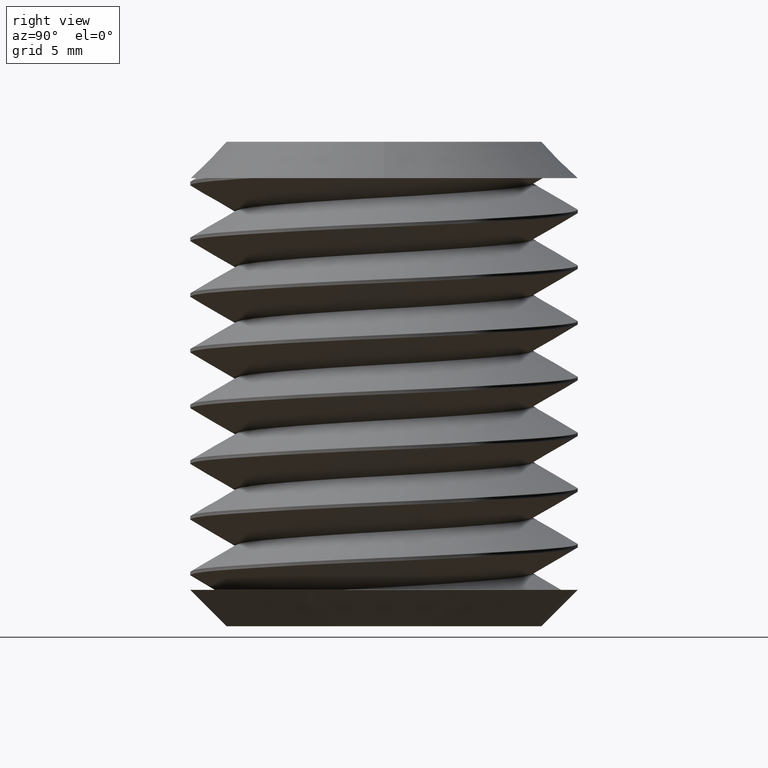
[diagram: clean part render]
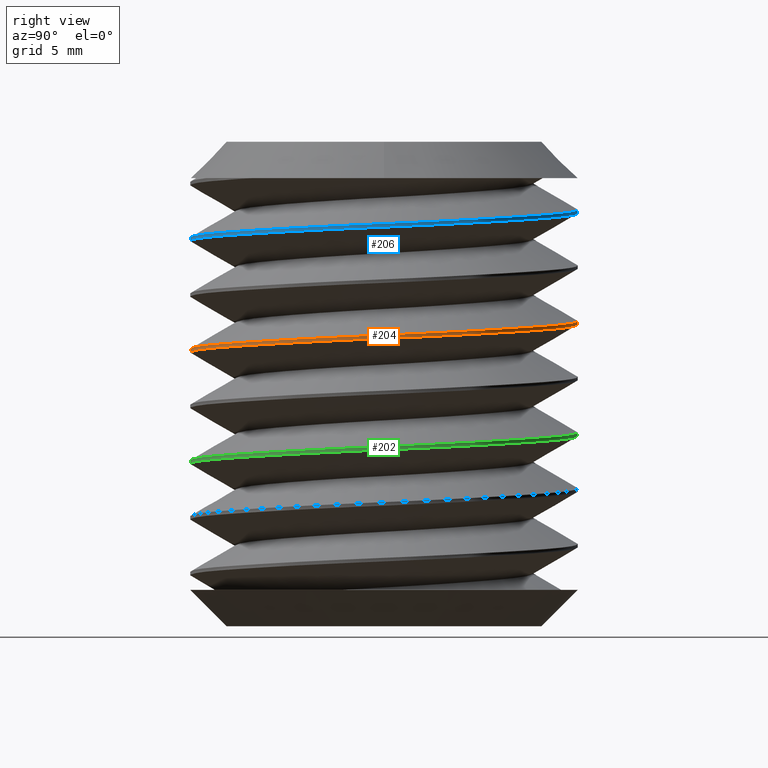
[diagram: same view with three faces highlighted in distinct colors, each labeled with its STEP entity id]
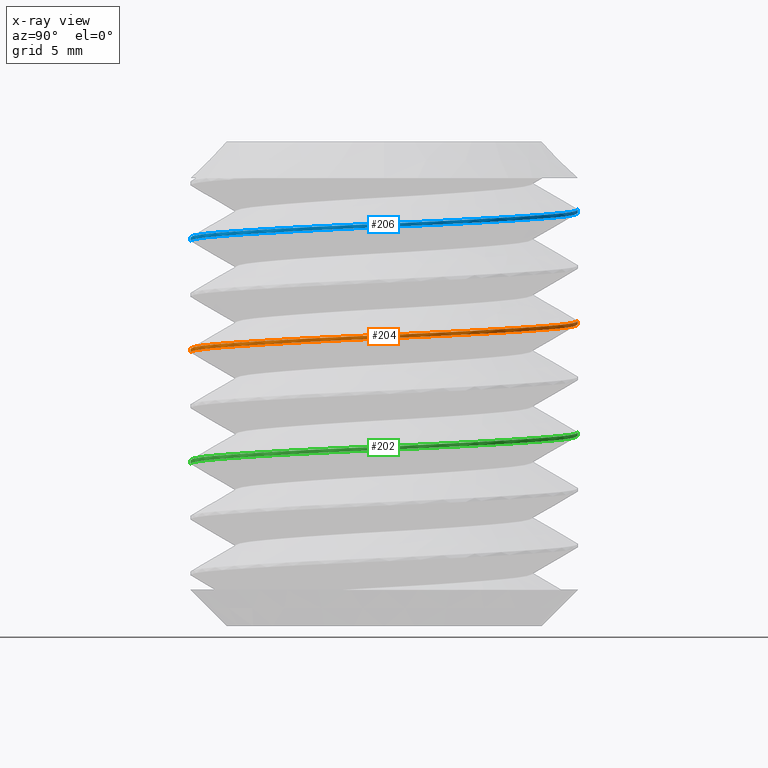
[diagram: x-ray of the same camera — body ghosted, the three highlighted faces saturated]
A machine part, right view with three faces highlighted in distinct colors.
The next image is the same camera in x-ray (body ghosted, the three faces saturated) — at least one of them is partly hidden behind the body in this view.
Their STEP definitions:

[orange] entity #204 — the highlighted cylindrical surface (partial cylindrical patch) has radius 8 mm, axis along (0, -0, 1).
#204 = ADVANCED_FACE ( 'NONE', ( #1640 ), #1641, .T. ) ;
#573 = CARTESIAN_POINT ( 'NONE',  ( 4.741141095785972700E-014, 7.999999999999998200, -7.402720502362306800 ) ) ;
#582 = CARTESIAN_POINT ( 'NONE',  ( 1.557139477537179200E-014, -8.000000000000001800, -8.697279497637692800 ) ) ;
#608 = CARTESIAN_POINT ( 'NONE',  ( 1.661816435848325300E-011, 7.999999999999998200, -7.547279497638494500 ) ) ;
#612 = CARTESIAN_POINT ( 'NONE',  ( -3.160760730523304000E-014, -8.000000000000001800, -8.552720502362307200 ) ) ;
#1529 = VECTOR ( 'NONE', #1969, 1000.000000000000000 ) ;
#1530 = VECTOR ( 'NONE', #1875, 1000.000000000000000 ) ;
#1609 = EDGE_LOOP ( 'NONE', ( #1620, #1632, #1621, #1631 ) ) ;
#1620 = ORIENTED_EDGE ( 'NONE', *, *, #2745, .F. ) ;
#1621 = ORIENTED_EDGE ( 'NONE', *, *, #2737, .F. ) ;
#1631 = ORIENTED_EDGE ( 'NONE', *, *, #2738, .F. ) ;
#1632 = ORIENTED_EDGE ( 'NONE', *, *, #2741, .T. ) ;
#1640 = FACE_OUTER_BOUND ( 'NONE', #1609, .T. ) ;
#1641 = CYLINDRICAL_SURFACE ( 'NONE', #2611, 8.000000000000000000 ) ;
#1680 = LINE ( 'NONE', #1968, #1529 ) ;
#1682 = LINE ( 'NONE', #1874, #1530 ) ;
#1828 = CARTESIAN_POINT ( 'NONE',  ( -3.160760730523304000E-014, -8.000000000000001800, -8.552720502362307200 ) ) ;
#1829 = CARTESIAN_POINT ( 'NONE',  ( 0.5226088002308849600, -8.000000000000003600, -8.527678830706863200 ) ) ;
#1830 = CARTESIAN_POINT ( 'NONE',  ( 1.052432807691206200, -7.947612275793318300, -8.502291430385934500 ) ) ;
#1831 = CARTESIAN_POINT ( 'NONE',  ( 2.075669171119109100, -7.743626617619882200, -8.453261354735810000 ) ) ;
#1832 = CARTESIAN_POINT ( 'NONE',  ( 2.574572175444778100, -7.592636507834037700, -8.429355585839537900 ) ) ;
#1833 = CARTESIAN_POINT ( 'NONE',  ( 3.303389996348934600, -7.290867732217407100, -8.394433065363434900 ) ) ;
#1834 = CARTESIAN_POINT ( 'NONE',  ( 3.542794317386748200, -7.177544593921918000, -8.382961608352916400 ) ) ;
#1835 = CARTESIAN_POINT ( 'NONE',  ( 4.004477851407028100, -6.930562394974601600, -8.360839272429931400 ) ) ;
#1836 = CARTESIAN_POINT ( 'NONE',  ( 4.228139451915261300, -6.796372243112667600, -8.350117397919586200 ) ) ;
#1837 = CARTESIAN_POINT ( 'NONE',  ( 4.661260924591883500, -6.506956699154178700, -8.327730637750200100 ) ) ;
#1838 = CARTESIAN_POINT ( 'NONE',  ( 4.870728819701847500, -6.351727176535169100, -8.316270568703139100 ) ) ;
#1839 = CARTESIAN_POINT ( 'NONE',  ( 5.275290794467362200, -6.019945547429602000, -8.292809978933098200 ) ) ;
#1840 = CARTESIAN_POINT ( 'NONE',  ( 5.471347608187661700, -5.842397324539669900, -8.280745056813525900 ) ) ;
#1841 = CARTESIAN_POINT ( 'NONE',  ( 6.029531319994307900, -5.284104148372167100, -8.244204385105753400 ) ) ;
#1842 = CARTESIAN_POINT ( 'NONE',  ( 6.359980615301896700, -4.880840584347471800, -8.219553122161809000 ) ) ;
#1843 = CARTESIAN_POINT ( 'NONE',  ( 6.794845245381927700, -4.230610789297205800, -8.182151871619831600 ) ) ;
#1844 = CARTESIAN_POINT ( 'NONE',  ( 6.929592255682453400, -4.006257374180204800, -8.169613552789506600 ) ) ;
#1845 = CARTESIAN_POINT ( 'NONE',  ( 7.178056057766982100, -3.541872133454598200, -8.144390156323487100 ) ) ;
#1846 = CARTESIAN_POINT ( 'NONE',  ( 7.290949748728730900, -3.303090583754910300, -8.131776681574447000 ) ) ;
#1847 = CARTESIAN_POINT ( 'NONE',  ( 7.591114007075384000, -2.578451221856914900, -8.094514849896208700 ) ) ;
#1848 = CARTESIAN_POINT ( 'NONE',  ( 7.742576973672098200, -2.080113069091529700, -8.070206486082129900 ) ) ;
#1849 = CARTESIAN_POINT ( 'NONE',  ( 7.896422589923600000, -1.309619190721136300, -8.034547378021562400 ) ) ;
#1850 = CARTESIAN_POINT ( 'NONE',  ( 7.935456899515554800, -1.047893127973238600, -8.022751321336134100 ) ) ;
#1851 = CARTESIAN_POINT ( 'NONE',  ( 7.987243411179064400, -0.5229712251157600000, -7.999727892031623700 ) ) ;
#1852 = CARTESIAN_POINT ( 'NONE',  ( 8.000150964001948100, -0.2595912866055704000, -7.988496391562401700 ) ) ;
#1853 = CARTESIAN_POINT ( 'NONE',  ( 7.999694084806080200, 0.5330167737791580200, -7.955594548829871800 ) ) ;
#1854 = CARTESIAN_POINT ( 'NONE',  ( 7.947552778794990200, 1.053396489205036900, -7.932751106720894000 ) ) ;
#1855 = CARTESIAN_POINT ( 'NONE',  ( 7.742905846609764900, 2.078616940597217200, -7.885304482459300600 ) ) ;
#1856 = CARTESIAN_POINT ( 'NONE',  ( 7.587871611003553300, 2.587898346250321800, -7.860456444344497300 ) ) ;
#1857 = CARTESIAN_POINT ( 'NONE',  ( 7.186796644902486300, 3.552881565774069100, -7.810803399188544400 ) ) ;
#1858 = CARTESIAN_POINT ( 'NONE',  ( 6.941014122379733000, 4.012129251350360800, -7.785857435162980300 ) ) ;
#1859 = CARTESIAN_POINT ( 'NONE',  ( 6.503783745852854500, 4.665780913344977200, -7.748257507994044800 ) ) ;
#1860 = CARTESIAN_POINT ( 'NONE',  ( 6.345644109467529300, 4.878694722510875400, -7.735633450768173000 ) ) ;
#1861 = CARTESIAN_POINT ( 'NONE',  ( 6.012287449928190400, 5.284057245991130400, -7.710825431666714600 ) ) ;
#1862 = CARTESIAN_POINT ( 'NONE',  ( 5.836675000086629900, 5.477324925421421600, -7.698598011389917100 ) ) ;
#1863 = CARTESIAN_POINT ( 'NONE',  ( 5.283615839161779300, 6.029498921575062700, -7.662434043419700000 ) ) ;
#1864 = CARTESIAN_POINT ( 'NONE',  ( 4.880011995010621100, 6.361178061461540500, -7.639000661946915300 ) ) ;
#1865 = CARTESIAN_POINT ( 'NONE',  ( 4.001125067513317600, 6.947668788535019700, -7.593606360618881700 ) ) ;
#1866 = CARTESIAN_POINT ( 'NONE',  ( 3.540151458266527200, 7.192973889529051600, -7.572352759794688000 ) ) ;
#1867 = CARTESIAN_POINT ( 'NONE',  ( 2.817886017718969500, 7.491822530057175000, -7.537744207390015400 ) ) ;
#1868 = CARTESIAN_POINT ( 'NONE',  ( 2.571951002029348600, 7.579840751936609800, -7.525959821209451800 ) ) ;
#1869 = CARTESIAN_POINT ( 'NONE',  ( 2.069484247166448300, 7.732150589085071200, -7.501883289187689200 ) ) ;
#1870 = CARTESIAN_POINT ( 'NONE',  ( 1.812201390956995400, 7.796448187286948400, -7.489555152321870000 ) ) ;
#1871 = CARTESIAN_POINT ( 'NONE',  ( 1.041003024184543600, 7.949278305442850200, -7.452601897240253200 ) ) ;
#1872 = CARTESIAN_POINT ( 'NONE',  ( 0.5226123010695105100, 7.999999999999994700, -7.427762341766261900 ) ) ;
#1873 = CARTESIAN_POINT ( 'NONE',  ( 4.741141095785972700E-014, 7.999999999999998200, -7.402720502362306800 ) ) ;
#1874 = CARTESIAN_POINT ( 'NONE',  ( 0.0000000000000000000, -8.000000000000000000, -18.50000000000000400 ) ) ;
#1875 = DIRECTION ( 'NONE',  ( 0.0000000000000000000, -2.168404344971008900E-016, 1.000000000000000000 ) ) ;
#1968 = CARTESIAN_POINT ( 'NONE',  ( 9.797174393178825700E-016, 8.000000000000000000, -18.49999999999999600 ) ) ;
#1969 = DIRECTION ( 'NONE',  ( 0.0000000000000000000, -2.168404344971008900E-016, 1.000000000000000000 ) ) ;
#1977 = CARTESIAN_POINT ( 'NONE',  ( 1.661816435848325300E-011, 7.999999999999998200, -7.547279497638494500 ) ) ;
#1978 = CARTESIAN_POINT ( 'NONE',  ( 0.5226088010514750000, 7.999999999998914600, -7.572321169332462400 ) ) ;
#1979 = CARTESIAN_POINT ( 'NONE',  ( 1.052432807923309400, 7.947612275722050900, -7.597708569625193100 ) ) ;
#1980 = CARTESIAN_POINT ( 'NONE',  ( 2.075669170149800000, 7.743626617838101500, -7.646738645217744200 ) ) ;
#1981 = CARTESIAN_POINT ( 'NONE',  ( 2.574572174866207200, 7.592636508125872700, -7.670644414132738100 ) ) ;
#1982 = CARTESIAN_POINT ( 'NONE',  ( 3.303389997656552600, 7.290867731649841600, -7.705566934699224800 ) ) ;
#1983 = CARTESIAN_POINT ( 'NONE',  ( 3.542794317844661500, 7.177544593676504500, -7.717038391669030200 ) ) ;
#1984 = CARTESIAN_POINT ( 'NONE',  ( 4.004477850927937500, 6.930562395231343800, -7.739160727547117700 ) ) ;
#1985 = CARTESIAN_POINT ( 'NONE',  ( 4.228139451217178800, 6.796372243545621700, -7.749882602045724800 ) ) ;
#1986 = CARTESIAN_POINT ( 'NONE',  ( 4.661260923866822600, 6.506956699672180400, -7.772269362210937300 ) ) ;
#1987 = CARTESIAN_POINT ( 'NONE',  ( 4.870728819169122500, 6.351727176962614700, -7.783729431266367600 ) ) ;
#1988 = CARTESIAN_POINT ( 'NONE',  ( 5.275290794654931200, 6.019945547285213500, -7.807190021077392600 ) ) ;
#1989 = CARTESIAN_POINT ( 'NONE',  ( 5.471347609197078300, 5.842397323560088100, -7.819254943251313400 ) ) ;
#1990 = CARTESIAN_POINT ( 'NONE',  ( 6.029531319345041500, 5.284104148961475300, -7.855795614854240900 ) ) ;
#1991 = CARTESIAN_POINT ( 'NONE',  ( 6.359980614500598200, 4.880840585442562100, -7.880446877773550800 ) ) ;
#1992 = CARTESIAN_POINT ( 'NONE',  ( 6.794845245049855500, 4.230610789845244700, -7.917848128349475300 ) ) ;
#1993 = CARTESIAN_POINT ( 'NONE',  ( 6.929592255625501600, 4.006257374327992300, -7.930386447202997700 ) ) ;
#1994 = CARTESIAN_POINT ( 'NONE',  ( 7.178056058383004900, 3.541872132261886900, -7.955609843740768700 ) ) ;
#1995 = CARTESIAN_POINT ( 'NONE',  ( 7.290949748668633200, 3.303090583850359700, -7.968223318420155200 ) ) ;
#1996 = CARTESIAN_POINT ( 'NONE',  ( 7.591114006528415300, 2.578451223276611700, -8.005485150031779200 ) ) ;
#1997 = CARTESIAN_POINT ( 'NONE',  ( 7.742576973354097400, 2.080113070536210100, -8.029793513850306000 ) ) ;
#1998 = CARTESIAN_POINT ( 'NONE',  ( 7.896422589952663000, 1.309619190649498900, -8.065452621982109000 ) ) ;
#1999 = CARTESIAN_POINT ( 'NONE',  ( 7.935456899612184100, 1.047893127153243900, -8.077248678700218700 ) ) ;
#2000 = CARTESIAN_POINT ( 'NONE',  ( 7.987243411175713300, 0.5229712249902057600, -8.100272107973506100 ) ) ;
#2001 = CARTESIAN_POINT ( 'NONE',  ( 8.000150963985802800, 0.2595912877790356700, -8.111503608389290000 ) ) ;
#2002 = CARTESIAN_POINT ( 'NONE',  ( 7.999694084839250200, -0.5330167745979853500, -8.144405451203310200 ) ) ;
#2003 = CARTESIAN_POINT ( 'NONE',  ( 7.947552778605888200, -1.053396490421010200, -8.167248893334097200 ) ) ;
#2004 = CARTESIAN_POINT ( 'NONE',  ( 7.742905846483782100, -2.078616940959735300, -8.214695517558757500 ) ) ;
#2005 = CARTESIAN_POINT ( 'NONE',  ( 7.587871611022749500, -2.587898346328377600, -8.239543555658283200 ) ) ;
#2006 = CARTESIAN_POINT ( 'NONE',  ( 7.186796644322902800, -3.552881567044298800, -8.289196600878051800 ) ) ;
#2007 = CARTESIAN_POINT ( 'NONE',  ( 6.941014121712990800, -4.012129252365971500, -8.314142564895137300 ) ) ;
#2008 = CARTESIAN_POINT ( 'NONE',  ( 6.503783746052812700, -4.665780913036604400, -8.351742491988371600 ) ) ;
#2009 = CARTESIAN_POINT ( 'NONE',  ( 6.345644109827312600, -4.878694722071371900, -8.364366549204968100 ) ) ;
#2010 = CARTESIAN_POINT ( 'NONE',  ( 6.012287449617700100, -5.284057246370690700, -8.389174568356473600 ) ) ;
#2011 = CARTESIAN_POINT ( 'NONE',  ( 5.836674999544714900, -5.477324926003318800, -8.401401988647213800 ) ) ;
#2012 = CARTESIAN_POINT ( 'NONE',  ( 5.283615838360774800, -6.029498922293081300, -8.437565956629283500 ) ) ;
#2013 = CARTESIAN_POINT ( 'NONE',  ( 4.880011997096483300, -6.361178059983728900, -8.460999337941784000 ) ) ;
#2014 = CARTESIAN_POINT ( 'NONE',  ( 4.001125067227656400, -6.947668788811571800, -8.506393639399430400 ) ) ;
#2015 = CARTESIAN_POINT ( 'NONE',  ( 3.540151457421616000, -7.192973889924073400, -8.527647240245796600 ) ) ;
#2016 = CARTESIAN_POINT ( 'NONE',  ( 2.817886017248246900, -7.491822530229229400, -8.562255792632543100 ) ) ;
#2017 = CARTESIAN_POINT ( 'NONE',  ( 2.571951001886083600, -7.579840751965061700, -8.574040178797414300 ) ) ;
#2018 = CARTESIAN_POINT ( 'NONE',  ( 2.069484248145508700, -7.732150588803269100, -8.598116710765399500 ) ) ;
#2019 = CARTESIAN_POINT ( 'NONE',  ( 1.812201391686569400, -7.796448187133431200, -8.610444847643167400 ) ) ;
#2020 = CARTESIAN_POINT ( 'NONE',  ( 1.041003023513330700, -7.949278305593760600, -8.647398102791907300 ) ) ;
#2021 = CARTESIAN_POINT ( 'NONE',  ( 0.5226123002992602000, -8.000000000000005300, -8.672237658270644200 ) ) ;
#2022 = CARTESIAN_POINT ( 'NONE',  ( 1.557139477537179200E-014, -8.000000000000001800, -8.697279497637692800 ) ) ;
#2111 = B_SPLINE_CURVE_WITH_KNOTS ( 'NONE', 3,
 ( #1977, #1978, #1979, #1980, #1981, #1982, #1983, #1984, #1985, #1986, #1987, #1988, #1989, #1990, #1991, #1992, #1993, #1994, #1995, #1996, #1997, #1998, #1999, #2000, #2001, #2002, #2003, #2004, #2005, #2006, #2007, #2008, #2009, #2010, #2011, #2012, #2013, #2014, #2015, #2016, #2017, #2018, #2019, #2020, #2021, #2022 ),
 .UNSPECIFIED., .F., .F.,
 ( 4, 2, 2, 2, 2, 2, 2, 2, 2, 2, 2, 2, 2, 2, 2, 2, 2, 2, 2, 2, 2, 2, 4 ),
 ( -0.2409839784081598500, -0.2393984818901206400, -0.2378129853720814500, -0.2370202371130618300, -0.2362274888540422400, -0.2354347405950226500, -0.2346419923360030200, -0.2330564958179638100, -0.2322637475589442200, -0.2314709992999246200, -0.2298855027818854100, -0.2290927545228658200, -0.2283000062638461900, -0.2267145097458069800, -0.2251290132277677900, -0.2235435167097285800, -0.2227507684507089600, -0.2219580201916893600, -0.2203725236736501500, -0.2187870271556109400, -0.2179942788965913400, -0.2172015306375717500, -0.2156160341195325300 ),
 .UNSPECIFIED. ) ;
#2115 = B_SPLINE_CURVE_WITH_KNOTS ( 'NONE', 3,
 ( #1828, #1829, #1830, #1831, #1832, #1833, #1834, #1835, #1836, #1837, #1838, #1839, #1840, #1841, #1842, #1843, #1844, #1845, #1846, #1847, #1848, #1849, #1850, #1851, #1852, #1853, #1854, #1855, #1856, #1857, #1858, #1859, #1860, #1861, #1862, #1863, #1864, #1865, #1866, #1867, #1868, #1869, #1870, #1871, #1872, #1873 ),
 .UNSPECIFIED., .F., .F.,
 ( 4, 2, 2, 2, 2, 2, 2, 2, 2, 2, 2, 2, 2, 2, 2, 2, 2, 2, 2, 2, 2, 2, 4 ),
 ( 0.2170485514959845100, 0.2186167223019587200, 0.2201848931079329300, 0.2209689785109200100, 0.2217530639139071200, 0.2225371493168942200, 0.2233212347198813300, 0.2248894055258555100, 0.2256734909288426200, 0.2264575763318297200, 0.2280257471378039100, 0.2288098325407910100, 0.2295939179437780900, 0.2311620887497522800, 0.2327302595557264900, 0.2342984303617006700, 0.2350825157646877500, 0.2358666011676748600, 0.2374347719736490400, 0.2390029427796232500, 0.2397870281826103300, 0.2405711135855974300, 0.2421392843915716200 ),
 .UNSPECIFIED. ) ;
#2611 = AXIS2_PLACEMENT_3D ( 'NONE', #2776, #2768, #2767 ) ;
#2737 = EDGE_CURVE ( 'NONE', #2818, #2764, #2115, .T. ) ;
#2738 = EDGE_CURVE ( 'NONE', #2787, #2818, #1682, .T. ) ;
#2741 = EDGE_CURVE ( 'NONE', #2814, #2764, #1680, .T. ) ;
#2745 = EDGE_CURVE ( 'NONE', #2814, #2787, #2111, .T. ) ;
#2764 = VERTEX_POINT ( 'NONE', #573 ) ;
#2767 = DIRECTION ( 'NONE',  ( 0.0000000000000000000, -1.000000000000000000, -4.336808689942017700E-016 ) ) ;
#2768 = DIRECTION ( 'NONE',  ( 0.0000000000000000000, -2.168404344971008900E-016, 1.000000000000000000 ) ) ;
#2776 = CARTESIAN_POINT ( 'NONE',  ( 0.0000000000000000000, 0.0000000000000000000, -18.50000000000000000 ) ) ;
#2787 = VERTEX_POINT ( 'NONE', #582 ) ;
#2814 = VERTEX_POINT ( 'NONE', #608 ) ;
#2818 = VERTEX_POINT ( 'NONE', #612 ) ;

[blue] entity #206 — the highlighted cylindrical surface (partial cylindrical patch) has radius 8 mm, axis along (0, -0, 1).
#206 = ADVANCED_FACE ( 'NONE', ( #1580 ), #1638, .T. ) ;
#476 = CARTESIAN_POINT ( 'NONE',  ( 0.0000000000000000000, -8.000000000000000000, -18.50000000000000400 ) ) ;
#477 = DIRECTION ( 'NONE',  ( 0.0000000000000000000, -2.168404344971008900E-016, 1.000000000000000000 ) ) ;
#478 = CARTESIAN_POINT ( 'NONE',  ( 9.797174393178825700E-016, 8.000000000000000000, -18.49999999999999600 ) ) ;
#479 = DIRECTION ( 'NONE',  ( 0.0000000000000000000, -2.168404344971008900E-016, 1.000000000000000000 ) ) ;
#480 = CARTESIAN_POINT ( 'NONE',  ( -5.531331278416546900E-014, -8.000000000000003600, -3.952720502362308900 ) ) ;
#481 = CARTESIAN_POINT ( 'NONE',  ( 0.5226087998183888100, -8.000000000000007100, -3.927678830726628600 ) ) ;
#482 = CARTESIAN_POINT ( 'NONE',  ( 1.052432807556953600, -7.947612275830326900, -3.902291430392365700 ) ) ;
#483 = CARTESIAN_POINT ( 'NONE',  ( 2.075669171555433400, -7.743626617522664900, -3.853261354714905300 ) ) ;
#484 = CARTESIAN_POINT ( 'NONE',  ( 2.574572175675046400, -7.592636507707501500, -3.829355585828506700 ) ) ;
#485 = CARTESIAN_POINT ( 'NONE',  ( 3.303389995626158100, -7.290867732532271700, -3.794433065398067600 ) ) ;
#486 = CARTESIAN_POINT ( 'NONE',  ( 3.542794317080983500, -7.177544594082227100, -3.782961608367568100 ) ) ;
#487 = CARTESIAN_POINT ( 'NONE',  ( 4.004477851557639100, -6.930562394897300700, -3.760839272422714400 ) ) ;
#488 = CARTESIAN_POINT ( 'NONE',  ( 4.228139452170631300, -6.796372242954201500, -3.750117397906894000 ) ) ;
#489 = CARTESIAN_POINT ( 'NONE',  ( 4.661260924853509700, -6.506956698967181700, -3.727730637736170300 ) ) ;
#490 = CARTESIAN_POINT ( 'NONE',  ( 4.870728819864813100, -6.351727176400511400, -3.716270568693645200 ) ) ;
#491 = CARTESIAN_POINT ( 'NONE',  ( 5.275290794267340800, -6.019945547594654800, -3.692809978944738600 ) ) ;
#492 = CARTESIAN_POINT ( 'NONE',  ( 5.471347607577106600, -5.842397325128175100, -3.680745056852572800 ) ) ;
#493 = CARTESIAN_POINT ( 'NONE',  ( 6.029531320204743100, -5.284104148206025400, -3.644204385093816600 ) ) ;
#494 = CARTESIAN_POINT ( 'NONE',  ( 6.359980615588257000, -4.880840583947524200, -3.619553122138350800 ) ) ;
#495 = CARTESIAN_POINT ( 'NONE',  ( 6.794845245439477200, -4.230610789197050400, -3.582151871614295000 ) ) ;
#496 = CARTESIAN_POINT ( 'NONE',  ( 6.929592255605385300, -4.006257374288552800, -3.569613552795847200 ) ) ;
#497 = CARTESIAN_POINT ( 'NONE',  ( 7.178056057361143200, -3.541872134248849100, -3.544390156366168400 ) ) ;
#498 = CARTESIAN_POINT ( 'NONE',  ( 7.290949748663162900, -3.303090583917613900, -3.531776681582768300 ) ) ;
#499 = CARTESIAN_POINT ( 'NONE',  ( 7.591114007265813900, -2.578451221388356400, -3.494514849872198100 ) ) ;
#500 = CARTESIAN_POINT ( 'NONE',  ( 7.742576973760675300, -2.080113068628349500, -3.470206486060782000 ) ) ;
#501 = CARTESIAN_POINT ( 'NONE',  ( 7.896422589862143400, -1.309619191038614100, -3.434547378036208400 ) ) ;
#502 = CARTESIAN_POINT ( 'NONE',  ( 7.935456899430533900, -1.047893128643428800, -3.422751321365977300 ) ) ;
#503 = CARTESIAN_POINT ( 'NONE',  ( 7.987243411152070900, -0.5229712255809639800, -3.399727892051575200 ) ) ;
#504 = CARTESIAN_POINT ( 'NONE',  ( 8.000150963984694400, -0.2595912873407174000, -3.388496391592494400 ) ) ;
#505 = CARTESIAN_POINT ( 'NONE',  ( 7.999694084841514100, 0.5330167736436082200, -3.355594548836345200 ) ) ;
#506 = CARTESIAN_POINT ( 'NONE',  ( 7.947552778788327100, 1.053396489202553400, -3.332751106720838000 ) ) ;
#507 = CARTESIAN_POINT ( 'NONE',  ( 7.742905846658457500, 2.078616940389110800, -3.285304482469105600 ) ) ;
#508 = CARTESIAN_POINT ( 'NONE',  ( 7.587871611109317600, 2.587898345982179800, -3.260456444358159600 ) ) ;
#509 = CARTESIAN_POINT ( 'NONE',  ( 7.186796644858499200, 3.552881565893611300, -3.210803399182532700 ) ) ;
#510 = CARTESIAN_POINT ( 'NONE',  ( 6.941014122318279100, 4.012129251419167100, -3.185857435158651300 ) ) ;
#511 = CARTESIAN_POINT ( 'NONE',  ( 6.503783746046748200, 4.665780913066636300, -3.148257508010237100 ) ) ;
#512 = CARTESIAN_POINT ( 'NONE',  ( 6.345644109708593400, 4.878694722205932700, -3.135633450786601300 ) ) ;
#513 = CARTESIAN_POINT ( 'NONE',  ( 6.012287449977466600, 5.284057245943008900, -3.110825431669889300 ) ) ;
#514 = CARTESIAN_POINT ( 'NONE',  ( 5.836675000069018200, 5.477324925441839000, -3.098598011388646900 ) ) ;
#515 = CARTESIAN_POINT ( 'NONE',  ( 5.283615839066095900, 6.029498921664917100, -3.062434043413680300 ) ) ;
#516 = CARTESIAN_POINT ( 'NONE',  ( 4.880011995737207900, 6.361178060940571500, -3.039000661985943100 ) ) ;
#517 = CARTESIAN_POINT ( 'NONE',  ( 4.001125067543560100, 6.947668788550965100, -2.993606360618950900 ) ) ;
#518 = CARTESIAN_POINT ( 'NONE',  ( 3.540151458126065400, 7.192973889593381500, -2.972352759787957300 ) ) ;
#519 = CARTESIAN_POINT ( 'NONE',  ( 2.817886017667033300, 7.491822530075555000, -2.937744207387525300 ) ) ;
#520 = CARTESIAN_POINT ( 'NONE',  ( 2.571951002064524000, 7.579840751919179300, -2.925959821211135300 ) ) ;
#521 = CARTESIAN_POINT ( 'NONE',  ( 2.069484247508717200, 7.732150588988081300, -2.901883289204088400 ) ) ;
#522 = CARTESIAN_POINT ( 'NONE',  ( 1.812201391220405400, 7.796448187230588200, -2.889555152334490900 ) ) ;
#523 = CARTESIAN_POINT ( 'NONE',  ( 1.041003024024579800, 7.949278305482883100, -2.852601897232589500 ) ) ;
#524 = CARTESIAN_POINT ( 'NONE',  ( 0.5226123008655156900, 7.999999999999996400, -2.827762341756488300 ) ) ;
#525 = CARTESIAN_POINT ( 'NONE',  ( 1.859271017957875900E-015, 7.999999999999996400, -2.802720502362302700 ) ) ;
#526 = CARTESIAN_POINT ( 'NONE',  ( -1.557139477537178000E-014, 7.999999999999996400, -2.947279497637697300 ) ) ;
#527 = CARTESIAN_POINT ( 'NONE',  ( 0.5226088014471407300, 7.999999999999998200, -2.972321169351419500 ) ) ;
#528 = CARTESIAN_POINT ( 'NONE',  ( 1.052432808041742200, 7.947612275687204100, -2.997708569630867600 ) ) ;
#529 = CARTESIAN_POINT ( 'NONE',  ( 2.075669169699798600, 7.743626617939056300, -3.046738645196182600 ) ) ;
#530 = CARTESIAN_POINT ( 'NONE',  ( 2.574572174622669500, 7.592636508256867400, -3.070644414121068300 ) ) ;
#531 = CARTESIAN_POINT ( 'NONE',  ( 3.303389998365840400, 7.290867731341078800, -3.105566934733212700 ) ) ;
#532 = CARTESIAN_POINT ( 'NONE',  ( 3.542794318137947800, 7.177544593522376300, -3.117038391683083700 ) ) ;
#533 = CARTESIAN_POINT ( 'NONE',  ( 4.004477850766330800, 6.930562395315019100, -3.139160727539373100 ) ) ;
#534 = CARTESIAN_POINT ( 'NONE',  ( 4.228139450951379000, 6.796372243710586700, -3.149882602032507700 ) ) ;
#535 = CARTESIAN_POINT ( 'NONE',  ( 4.661260923595612800, 6.506956699866052900, -3.172269362196394200 ) ) ;
#536 = CARTESIAN_POINT ( 'NONE',  ( 4.870728818996868300, 6.351727177104392800, -3.183729431256356900 ) ) ;
#537 = CARTESIAN_POINT ( 'NONE',  ( 5.275290794845992600, 6.019945547128003200, -3.207190021088493800 ) ) ;
#538 = CARTESIAN_POINT ( 'NONE',  ( 5.471347609798474600, 5.842397322980189300, -3.219254943289785700 ) ) ;
#539 = CARTESIAN_POINT ( 'NONE',  ( 6.029531319127889900, 5.284104149135427700, -3.255795614841818800 ) ) ;
#540 = CARTESIAN_POINT ( 'NONE',  ( 6.359980614208484300, 4.880840585850029000, -3.280446877749648900 ) ) ;
#541 = CARTESIAN_POINT ( 'NONE',  ( 6.794845244987403300, 4.230610789953287200, -3.317848128343496000 ) ) ;
#542 = CARTESIAN_POINT ( 'NONE',  ( 6.929592255697887300, 4.006257374227749900, -3.330386447208895100 ) ) ;
#543 = CARTESIAN_POINT ( 'NONE',  ( 7.178056058784440200, 3.541872131476562700, -3.355609843782976700 ) ) ;
#544 = CARTESIAN_POINT ( 'NONE',  ( 7.290949748730595200, 3.303090583695666100, -3.368223318428059000 ) ) ;
#545 = CARTESIAN_POINT ( 'NONE',  ( 7.591114006335749800, 2.578451223751966100, -3.405485150007438100 ) ) ;
#546 = CARTESIAN_POINT ( 'NONE',  ( 7.742576973263758200, 2.080113071005854900, -3.429793513828651300 ) ) ;
#547 = CARTESIAN_POINT ( 'NONE',  ( 7.896422590012941000, 1.309619190339001300, -3.465452621996434800 ) ) ;
#548 = CARTESIAN_POINT ( 'NONE',  ( 7.935456899696244900, 1.047893126490379500, -3.477248678729734100 ) ) ;
#549 = CARTESIAN_POINT ( 'NONE',  ( 7.987243411202295600, 0.5229712245315766300, -3.500272107993173800 ) ) ;
#550 = CARTESIAN_POINT ( 'NONE',  ( 8.000150964002855900, 0.2595912870501306300, -3.511503608419128200 ) ) ;
#551 = CARTESIAN_POINT ( 'NONE',  ( 7.999694084804219500, -0.5330167747277263500, -3.544405451209534900 ) ) ;
#552 = CARTESIAN_POINT ( 'NONE',  ( 7.947552778613295600, -1.053396490417987300, -3.567248893333792900 ) ) ;
#553 = CARTESIAN_POINT ( 'NONE',  ( 7.742905846436439500, -2.078616941162854100, -3.614695517568319500 ) ) ;
#554 = CARTESIAN_POINT ( 'NONE',  ( 7.587871610918643500, -2.587898346591777500, -3.639543555671706200 ) ) ;
#555 = CARTESIAN_POINT ( 'NONE',  ( 7.186796644368797600, -3.552881566920981000, -3.689196600871833100 ) ) ;
#556 = CARTESIAN_POINT ( 'NONE',  ( 6.941014121776296600, -4.012129252294046800, -3.714142564890638100 ) ) ;
#557 = CARTESIAN_POINT ( 'NONE',  ( 6.503783745860467900, -4.665780913312803900, -3.751742492004440000 ) ) ;
#558 = CARTESIAN_POINT ( 'NONE',  ( 6.345644109587782500, -4.878694722374305600, -3.764366549223276500 ) ) ;
#559 = CARTESIAN_POINT ( 'NONE',  ( 6.012287449570195000, -5.284057246416789000, -3.789174568359525300 ) ) ;
#560 = CARTESIAN_POINT ( 'NONE',  ( 5.836674999564199800, -5.477324925980909100, -3.801401988645816100 ) ) ;
#561 = CARTESIAN_POINT ( 'NONE',  ( 5.283615838458374000, -6.029498922201558900, -3.837565956623147000 ) ) ;
#562 = CARTESIAN_POINT ( 'NONE',  ( 4.880011996370634500, -6.361178060504102800, -3.860999337980767000 ) ) ;
#563 = CARTESIAN_POINT ( 'NONE',  ( 4.001125067198784400, -6.947668788794811900, -3.906393639399425900 ) ) ;
#564 = CARTESIAN_POINT ( 'NONE',  ( 3.540151457563579300, -7.192973889859033000, -3.927647240238991300 ) ) ;
#565 = CARTESIAN_POINT ( 'NONE',  ( 2.817886017301318700, -7.491822530210431100, -3.962255792629996200 ) ) ;
#566 = CARTESIAN_POINT ( 'NONE',  ( 2.571951001851842100, -7.579840751982182200, -3.974040178799052500 ) ) ;
#567 = CARTESIAN_POINT ( 'NONE',  ( 2.069484247803595500, -7.732150588900170300, -3.998116710781780100 ) ) ;
#568 = CARTESIAN_POINT ( 'NONE',  ( 1.812201391423496000, -7.796448187189713300, -4.010444847655773700 ) ) ;
#569 = CARTESIAN_POINT ( 'NONE',  ( 1.041003023673865400, -7.949278305553645100, -4.047398102784211600 ) ) ;
#570 = CARTESIAN_POINT ( 'NONE',  ( 0.5226123005037024400, -8.000000000000008900, -4.072237658260843500 ) ) ;
#571 = CARTESIAN_POINT ( 'NONE',  ( 1.557139477537179200E-014, -8.000000000000003600, -4.097279497637694900 ) ) ;
#590 = CARTESIAN_POINT ( 'NONE',  ( 1.557139477537179200E-014, -8.000000000000003600, -4.097279497637694900 ) ) ;
#602 = CARTESIAN_POINT ( 'NONE',  ( -5.531331278416546900E-014, -8.000000000000003600, -3.952720502362308900 ) ) ;
#606 = CARTESIAN_POINT ( 'NONE',  ( 1.859271017957875900E-015, 7.999999999999996400, -2.802720502362302700 ) ) ;
#615 = CARTESIAN_POINT ( 'NONE',  ( -1.557139477537178000E-014, 7.999999999999996400, -2.947279497637697300 ) ) ;
#1123 = DIRECTION ( 'NONE',  ( 0.0000000000000000000, -2.168404344971008900E-016, 1.000000000000000000 ) ) ;
#1124 = DIRECTION ( 'NONE',  ( 0.0000000000000000000, -1.000000000000000000, -4.336808689942017700E-016 ) ) ;
#1125 = CARTESIAN_POINT ( 'NONE',  ( 0.0000000000000000000, 0.0000000000000000000, -18.50000000000000000 ) ) ;
#1516 = VECTOR ( 'NONE', #479, 1000.000000000000000 ) ;
#1517 = VECTOR ( 'NONE', #477, 1000.000000000000000 ) ;
#1580 = FACE_OUTER_BOUND ( 'NONE', #1602, .T. ) ;
#1602 = EDGE_LOOP ( 'NONE', ( #2200, #2197, #2199, #2198 ) ) ;
#1638 = CYLINDRICAL_SURFACE ( 'NONE', #2613, 8.000000000000000000 ) ;
#1670 = LINE ( 'NONE', #476, #1517 ) ;
#1671 = LINE ( 'NONE', #478, #1516 ) ;
#2104 = B_SPLINE_CURVE_WITH_KNOTS ( 'NONE', 3,
 ( #526, #527, #528, #529, #530, #531, #532, #533, #534, #535, #536, #537, #538, #539, #540, #541, #542, #543, #544, #545, #546, #547, #548, #549, #550, #551, #552, #553, #554, #555, #556, #557, #558, #559, #560, #561, #562, #563, #564, #565, #566, #567, #568, #569, #570, #571 ),
 .UNSPECIFIED., .F., .F.,
 ( 4, 2, 2, 2, 2, 2, 2, 2, 2, 2, 2, 2, 2, 2, 2, 2, 2, 2, 2, 2, 2, 2, 4 ),
 ( -0.3424574545623341700, -0.3408719155692631600, -0.3392863765761921500, -0.3384936070796566400, -0.3377008375831211400, -0.3369080680865856300, -0.3361152985900501300, -0.3345297595969791100, -0.3337369901004436100, -0.3329442206039081600, -0.3313586816108371500, -0.3305659121143016400, -0.3297731426177661400, -0.3281876036246951200, -0.3266020646316241100, -0.3250165256385531000, -0.3242237561420175900, -0.3234309866454820900, -0.3218454476524110800, -0.3202599086593400600, -0.3194671391628045600, -0.3186743696662690500, -0.3170888306731980400 ),
 .UNSPECIFIED. ) ;
#2105 = B_SPLINE_CURVE_WITH_KNOTS ( 'NONE', 3,
 ( #480, #481, #482, #483, #484, #485, #486, #487, #488, #489, #490, #491, #492, #493, #494, #495, #496, #497, #498, #499, #500, #501, #502, #503, #504, #505, #506, #507, #508, #509, #510, #511, #512, #513, #514, #515, #516, #517, #518, #519, #520, #521, #522, #523, #524, #525 ),
 .UNSPECIFIED., .F., .F.,
 ( 4, 2, 2, 2, 2, 2, 2, 2, 2, 2, 2, 2, 2, 2, 2, 2, 2, 2, 2, 2, 2, 2, 4 ),
 ( 0.3174104748344059900, 0.3189786036306283500, 0.3205467324268506700, 0.3213307968249618500, 0.3221148612230730300, 0.3228989256211841600, 0.3236829900192953500, 0.3252511188155177100, 0.3260351832136288400, 0.3268192476117400300, 0.3283873764079623900, 0.3291714408060735800, 0.3299555052041847100, 0.3315236340004070700, 0.3330917627966294400, 0.3346598915928517500, 0.3354439559909629400, 0.3362280203890741200, 0.3377961491852964300, 0.3393642779815188000, 0.3401483423796299900, 0.3409324067777411100, 0.3425005355739634800 ),
 .UNSPECIFIED. ) ;
#2197 = ORIENTED_EDGE ( 'NONE', *, *, #2760, .T. ) ;
#2198 = ORIENTED_EDGE ( 'NONE', *, *, #2759, .F. ) ;
#2199 = ORIENTED_EDGE ( 'NONE', *, *, #2761, .F. ) ;
#2200 = ORIENTED_EDGE ( 'NONE', *, *, #2762, .F. ) ;
#2613 = AXIS2_PLACEMENT_3D ( 'NONE', #1125, #1123, #1124 ) ;
#2759 = EDGE_CURVE ( 'NONE', #2796, #2808, #1670, .T. ) ;
#2760 = EDGE_CURVE ( 'NONE', #2821, #2812, #1671, .T. ) ;
#2761 = EDGE_CURVE ( 'NONE', #2808, #2812, #2105, .T. ) ;
#2762 = EDGE_CURVE ( 'NONE', #2821, #2796, #2104, .T. ) ;
#2796 = VERTEX_POINT ( 'NONE', #590 ) ;
#2808 = VERTEX_POINT ( 'NONE', #602 ) ;
#2812 = VERTEX_POINT ( 'NONE', #606 ) ;
#2821 = VERTEX_POINT ( 'NONE', #615 ) ;

[green] entity #202 — the highlighted cylindrical surface (partial cylindrical patch) has radius 8 mm, axis along (0, -0, 1).
#202 = ADVANCED_FACE ( 'NONE', ( #1643 ), #1584, .T. ) ;
#585 = CARTESIAN_POINT ( 'NONE',  ( 3.160760730523302800E-014, 7.999999999999998200, -12.14727949763769900 ) ) ;
#603 = CARTESIAN_POINT ( 'NONE',  ( 0.0000000000000000000, -8.000000000000001800, -13.15272050236230700 ) ) ;
#604 = CARTESIAN_POINT ( 'NONE',  ( 0.0000000000000000000, 7.999999999999998200, -12.00272050236230500 ) ) ;
#618 = CARTESIAN_POINT ( 'NONE',  ( -3.160760730523304000E-014, -8.000000000000001800, -13.29727949763769600 ) ) ;
#876 = CARTESIAN_POINT ( 'NONE',  ( 0.5226088006431584000, -8.000000000000003600, -13.12767883068711500 ) ) ;
#877 = CARTESIAN_POINT ( 'NONE',  ( 1.052432807825403000, -7.947612275756332800, -13.10229143037950500 ) ) ;
#878 = CARTESIAN_POINT ( 'NONE',  ( 2.075669170683077400, -7.743626617717041000, -13.05326135475670800 ) ) ;
#879 = CARTESIAN_POINT ( 'NONE',  ( 2.574572175214660900, -7.592636507960497400, -13.02935558585056900 ) ) ;
#883 = CARTESIAN_POINT ( 'NONE',  ( 3.540151458406861600, 7.192973889464778600, -12.17235275980141100 ) ) ;
#885 = CARTESIAN_POINT ( 'NONE',  ( 5.836675000104197200, 5.477324925401045000, -12.29859801139118100 ) ) ;
#886 = CARTESIAN_POINT ( 'NONE',  ( 6.012287449878878800, 5.284057246039285600, -12.31082543166353800 ) ) ;
#887 = CARTESIAN_POINT ( 'NONE',  ( 6.345644109226436000, 4.878694722815849300, -12.33563345074974800 ) ) ;
#888 = CARTESIAN_POINT ( 'NONE',  ( 5.283615839257415700, 6.029498921485247500, -12.26243404342571900 ) ) ;
#889 = CARTESIAN_POINT ( 'NONE',  ( 4.001125067482904600, 6.947668788519184300, -12.19360636061881400 ) ) ;
#890 = CARTESIAN_POINT ( 'NONE',  ( 4.880011994283870000, 6.361178061982647200, -12.23900066190787900 ) ) ;
#891 = CARTESIAN_POINT ( 'NONE',  ( 6.941014122441087500, 4.012129251281717900, -12.38585743516729700 ) ) ;
#892 = CARTESIAN_POINT ( 'NONE',  ( 6.503783745658845200, 4.665780913623475400, -12.34825750797784000 ) ) ;
#893 = CARTESIAN_POINT ( 'NONE',  ( 7.587871610897802400, 2.587898346518457100, -12.46045644433083600 ) ) ;
#894 = CARTESIAN_POINT ( 'NONE',  ( 7.186796644946481300, 3.552881565654523400, -12.41080339919456500 ) ) ;
#895 = CARTESIAN_POINT ( 'NONE',  ( 7.947552778801642700, 1.053396489207576200, -12.53275110672095000 ) ) ;
#896 = CARTESIAN_POINT ( 'NONE',  ( 7.742905846561053600, 2.078616940805402300, -12.48530448244950000 ) ) ;
#897 = CARTESIAN_POINT ( 'NONE',  ( 8.000150964019198300, -0.2595912858704595400, -12.58849639153230600 ) ) ;
#898 = CARTESIAN_POINT ( 'NONE',  ( 7.999694084770649000, 0.5330167739146897100, -12.55559454882339300 ) ) ;
#899 = CARTESIAN_POINT ( 'NONE',  ( 7.935456899600540100, -1.047893127303254600, -12.62275132130628900 ) ) ;
#900 = CARTESIAN_POINT ( 'NONE',  ( 7.987243411206060600, -0.5229712246506157400, -12.59972789201167500 ) ) ;
#901 = CARTESIAN_POINT ( 'NONE',  ( 7.742576973583640100, -2.080113069554155200, -12.67020648610344200 ) ) ;
#902 = CARTESIAN_POINT ( 'NONE',  ( 7.896422589985052200, -1.309619190403535000, -12.63454737800691100 ) ) ;
#903 = CARTESIAN_POINT ( 'NONE',  ( 7.290949748794335300, -3.303090583592124900, -12.73177668156611200 ) ) ;
#904 = CARTESIAN_POINT ( 'NONE',  ( 7.591114006885120200, -2.578451222325009300, -12.69451484992018900 ) ) ;
#905 = CARTESIAN_POINT ( 'NONE',  ( 6.929592255759598800, -4.006257374071734200, -12.76961355278315600 ) ) ;
#906 = CARTESIAN_POINT ( 'NONE',  ( 7.178056058172698400, -3.541872132660600400, -12.74439015628081500 ) ) ;
#907 = CARTESIAN_POINT ( 'NONE',  ( 6.359980615015818900, -4.880840584747042900, -12.81955312218524200 ) ) ;
#908 = CARTESIAN_POINT ( 'NONE',  ( 6.794845245324527400, -4.230610789397128500, -12.78215187162535000 ) ) ;
#909 = CARTESIAN_POINT ( 'NONE',  ( 5.275290794667351500, -6.019945547264570400, -12.89280997892145600 ) ) ;
#910 = CARTESIAN_POINT ( 'NONE',  ( 5.471347608797914000, -5.842397323951451500, -12.88074505677449200 ) ) ;
#911 = CARTESIAN_POINT ( 'NONE',  ( 6.029531319784051200, -5.284104148538147200, -12.84420438511767800 ) ) ;
#912 = CARTESIAN_POINT ( 'NONE',  ( 4.661260924330551200, -6.506956699340962700, -12.92773063776421300 ) ) ;
#913 = CARTESIAN_POINT ( 'NONE',  ( 4.870728819539048800, -6.351727176669692600, -12.91627056871261900 ) ) ;
#914 = CARTESIAN_POINT ( 'NONE',  ( 4.004477851256621300, -6.930562395051801200, -12.96083927243714000 ) ) ;
#915 = CARTESIAN_POINT ( 'NONE',  ( 4.228139451660177400, -6.796372243270957000, -12.95011739793227100 ) ) ;
#916 = CARTESIAN_POINT ( 'NONE',  ( 3.303389997071322100, -7.290867731902707800, -12.99443306532882200 ) ) ;
#917 = CARTESIAN_POINT ( 'NONE',  ( 3.542794317692439200, -7.177544593761655100, -12.98296160833826600 ) ) ;
#918 = CARTESIAN_POINT ( 'NONE',  ( 0.0000000000000000000, -8.000000000000001800, -13.15272050236230700 ) ) ;
#921 = CARTESIAN_POINT ( 'NONE',  ( 2.571951001994103000, 7.579840751954049200, -12.12595982120776000 ) ) ;
#922 = CARTESIAN_POINT ( 'NONE',  ( 2.069484246824103900, 7.732150589182071900, -12.10188328917127800 ) ) ;
#923 = CARTESIAN_POINT ( 'NONE',  ( 1.812201390693438900, 7.796448187343343300, -12.08955515230923800 ) ) ;
#924 = CARTESIAN_POINT ( 'NONE',  ( 1.041003024344363100, 7.949278305402844000, -12.05260189724791600 ) ) ;
#925 = CARTESIAN_POINT ( 'NONE',  ( 0.5226123012734433800, 7.999999999999998200, -12.02776234177603800 ) ) ;
#926 = CARTESIAN_POINT ( 'NONE',  ( 0.0000000000000000000, 7.999999999999998200, -12.00272050236230500 ) ) ;
#927 = CARTESIAN_POINT ( 'NONE',  ( 9.797174393178825700E-016, 8.000000000000000000, -18.49999999999999600 ) ) ;
#928 = DIRECTION ( 'NONE',  ( 0.0000000000000000000, -2.168404344971008900E-016, 1.000000000000000000 ) ) ;
#934 = CARTESIAN_POINT ( 'NONE',  ( 2.817886017770765900, 7.491822530038840400, -12.13774420739249400 ) ) ;
#1528 = VECTOR ( 'NONE', #1971, 1000.000000000000000 ) ;
#1564 = VECTOR ( 'NONE', #928, 1000.000000000000000 ) ;
#1566 = LINE ( 'NONE', #927, #1564 ) ;
#1584 = CYLINDRICAL_SURFACE ( 'NONE', #2609, 8.000000000000000000 ) ;
#1608 = EDGE_LOOP ( 'NONE', ( #1617, #1660, #1654, #1655 ) ) ;
#1617 = ORIENTED_EDGE ( 'NONE', *, *, #2733, .F. ) ;
#1643 = FACE_OUTER_BOUND ( 'NONE', #1608, .T. ) ;
#1654 = ORIENTED_EDGE ( 'NONE', *, *, #2097, .F. ) ;
#1655 = ORIENTED_EDGE ( 'NONE', *, *, #2742, .F. ) ;
#1660 = ORIENTED_EDGE ( 'NONE', *, *, #2098, .T. ) ;
#1681 = LINE ( 'NONE', #1970, #1528 ) ;
#1732 = CARTESIAN_POINT ( 'NONE',  ( 3.160760730523302800E-014, 7.999999999999998200, -12.14727949763769900 ) ) ;
#1733 = CARTESIAN_POINT ( 'NONE',  ( 0.5226088006503714100, 8.000000000000000000, -12.17232116931324400 ) ) ;
#1734 = CARTESIAN_POINT ( 'NONE',  ( 1.052432807827642600, 7.947612275755690600, -12.19770856962060500 ) ) ;
#1735 = CARTESIAN_POINT ( 'NONE',  ( 2.075669170675098500, 7.743626617718822700, -12.24673864524291700 ) ) ;
#1736 = CARTESIAN_POINT ( 'NONE',  ( 2.574572175210236800, 7.592636507962845700, -12.27064441414922200 ) ) ;
#1737 = CARTESIAN_POINT ( 'NONE',  ( 3.303389997083584300, 7.290867731897373400, -12.30556693467176800 ) ) ;
#1738 = CARTESIAN_POINT ( 'NONE',  ( 3.542794317697267800, 7.177544593759104300, -12.31703839166196900 ) ) ;
#1739 = CARTESIAN_POINT ( 'NONE',  ( 4.004477851253353600, 6.930562395053514500, -12.33916072756271000 ) ) ;
#1740 = CARTESIAN_POINT ( 'NONE',  ( 4.228139451655082800, 6.796372243274118000, -12.34988260206748300 ) ) ;
#1741 = CARTESIAN_POINT ( 'NONE',  ( 4.661260924325299400, 6.506956699344711700, -12.37226936223550300 ) ) ;
#1742 = CARTESIAN_POINT ( 'NONE',  ( 4.870728819535526300, 6.351727176672565800, -12.38372943128717900 ) ) ;
#1743 = CARTESIAN_POINT ( 'NONE',  ( 5.275290794670189200, 6.019945547262260300, -12.40719002107871200 ) ) ;
#1744 = CARTESIAN_POINT ( 'NONE',  ( 5.471347608807951300, 5.842397323941752600, -12.41925494322615400 ) ) ;
#1745 = CARTESIAN_POINT ( 'NONE',  ( 6.029531319779609400, 5.284104148541900700, -12.45579561488206400 ) ) ;
#1746 = CARTESIAN_POINT ( 'NONE',  ( 6.359980615010064400, 4.880840584755000900, -12.48044687781429700 ) ) ;
#1747 = CARTESIAN_POINT ( 'NONE',  ( 6.794845245322830100, 4.230610789399982300, -12.51784812837448900 ) ) ;
#1748 = CARTESIAN_POINT ( 'NONE',  ( 6.929592255760245400, 4.006257374071046800, -12.53038644721688900 ) ) ;
#1749 = CARTESIAN_POINT ( 'NONE',  ( 7.178056058179182100, 3.541872132647962500, -12.55560984371986600 ) ) ;
#1750 = CARTESIAN_POINT ( 'NONE',  ( 7.290949748794875300, 3.303090583590620400, -12.56822331843396200 ) ) ;
#1751 = CARTESIAN_POINT ( 'NONE',  ( 7.591114006881238800, 2.578451222334796600, -12.60548515007931600 ) ) ;
#1752 = CARTESIAN_POINT ( 'NONE',  ( 7.742576973581631000, 2.080113069563941600, -12.62979351389610400 ) ) ;
#1753 = CARTESIAN_POINT ( 'NONE',  ( 7.896422589985827600, 1.309619190399746700, -12.66545262199326600 ) ) ;
#1754 = CARTESIAN_POINT ( 'NONE',  ( 7.935456899601790700, 1.047893127293189100, -12.67724867869415700 ) ) ;
#1755 = CARTESIAN_POINT ( 'NONE',  ( 7.987243411206352000, 0.5229712246450469700, -12.70027210798856000 ) ) ;
#1756 = CARTESIAN_POINT ( 'NONE',  ( 8.000150964019344000, 0.2595912858659065200, -12.71150360846787200 ) ) ;
#1757 = CARTESIAN_POINT ( 'NONE',  ( 7.999694084770357700, -0.5330167739187744400, -12.74440545117677500 ) ) ;
#1758 = CARTESIAN_POINT ( 'NONE',  ( 7.947552778801119500, -1.053396489211439800, -12.76724889327922700 ) ) ;
#1759 = CARTESIAN_POINT ( 'NONE',  ( 7.742905846560103300, -2.078616940808891500, -12.81469551755066900 ) ) ;
#1760 = CARTESIAN_POINT ( 'NONE',  ( 7.587871610896687700, -2.587898346521681600, -12.83954355566932500 ) ) ;
#1761 = CARTESIAN_POINT ( 'NONE',  ( 7.186796644945168600, -3.552881565657150600, -12.88919660080558000 ) ) ;
#1762 = CARTESIAN_POINT ( 'NONE',  ( 6.941014122439717000, -4.012129251284076000, -12.91414256483283800 ) ) ;
#1763 = CARTESIAN_POINT ( 'NONE',  ( 6.503783745657328200, -4.665780913625574100, -12.95174249202229100 ) ) ;
#1764 = CARTESIAN_POINT ( 'NONE',  ( 6.345644109224872800, -4.878694722817875200, -12.96436654925038200 ) ) ;
#1765 = CARTESIAN_POINT ( 'NONE',  ( 6.012287449877365300, -5.284057246041008700, -12.98917456833657800 ) ) ;
#1766 = CARTESIAN_POINT ( 'NONE',  ( 5.836675000102662400, -5.477324925402681000, -13.00140198860892200 ) ) ;
#1767 = CARTESIAN_POINT ( 'NONE',  ( 5.283615839255933400, -6.029498921486532700, -13.03756595657436900 ) ) ;
#1768 = CARTESIAN_POINT ( 'NONE',  ( 4.880011994282273900, -6.361178061983849800, -13.06099933809220700 ) ) ;
#1769 = CARTESIAN_POINT ( 'NONE',  ( 4.001125067481666500, -6.947668788519878000, -13.10639363938124400 ) ) ;
#1770 = CARTESIAN_POINT ( 'NONE',  ( 3.540151458405768700, -7.192973889465311500, -13.12764724019864300 ) ) ;
#1771 = CARTESIAN_POINT ( 'NONE',  ( 2.817886017769848400, -7.491822530039184100, -13.16225579260754800 ) ) ;
#1772 = CARTESIAN_POINT ( 'NONE',  ( 2.571951001993214400, -7.579840751954352000, -13.17404017879228000 ) ) ;
#1773 = CARTESIAN_POINT ( 'NONE',  ( 2.069484246823289000, -7.732150589182293900, -13.19811671082875500 ) ) ;
#1774 = CARTESIAN_POINT ( 'NONE',  ( 1.812201390692743200, -7.796448187343505900, -13.21044484769079300 ) ) ;
#1775 = CARTESIAN_POINT ( 'NONE',  ( 1.041003024344018300, -7.949278305402874200, -13.24739810275209900 ) ) ;
#1776 = CARTESIAN_POINT ( 'NONE',  ( 0.5226123012732505300, -8.000000000000007100, -13.27223765822397500 ) ) ;
#1777 = CARTESIAN_POINT ( 'NONE',  ( -3.160760730523304000E-014, -8.000000000000001800, -13.29727949763769600 ) ) ;
#1970 = CARTESIAN_POINT ( 'NONE',  ( 0.0000000000000000000, -8.000000000000000000, -18.50000000000000400 ) ) ;
#1971 = DIRECTION ( 'NONE',  ( 0.0000000000000000000, -2.168404344971008900E-016, 1.000000000000000000 ) ) ;
#2097 = EDGE_CURVE ( 'NONE', #2809, #2810, #2129, .T. ) ;
#2098 = EDGE_CURVE ( 'NONE', #2791, #2810, #1566, .T. ) ;
#2116 = B_SPLINE_CURVE_WITH_KNOTS ( 'NONE', 3,
 ( #1732, #1733, #1734, #1735, #1736, #1737, #1738, #1739, #1740, #1741, #1742, #1743, #1744, #1745, #1746, #1747, #1748, #1749, #1750, #1751, #1752, #1753, #1754, #1755, #1756, #1757, #1758, #1759, #1760, #1761, #1762, #1763, #1764, #1765, #1766, #1767, #1768, #1769, #1770, #1771, #1772, #1773, #1774, #1775, #1776, #1777 ),
 .UNSPECIFIED., .F., .F.,
 ( 4, 2, 2, 2, 2, 2, 2, 2, 2, 2, 2, 2, 2, 2, 2, 2, 2, 2, 2, 2, 2, 2, 4 ),
 ( -0.1395132206295799400, -0.1379277665853466700, -0.1363423125411134300, -0.1355495855189967900, -0.1347568584968801600, -0.1339641314747635200, -0.1331714044526468900, -0.1315859504084136400, -0.1307932233862970100, -0.1300004963641803700, -0.1284150423199471000, -0.1276223152978304700, -0.1268295882757138300, -0.1252441342314805600, -0.1236586801872472900, -0.1220732261430140200, -0.1212804991208973900, -0.1204877720987807500, -0.1189023180545474800, -0.1173168640103142300, -0.1165241369881975900, -0.1157314099660809600, -0.1141459559218476900 ),
 .UNSPECIFIED. ) ;
#2129 = B_SPLINE_CURVE_WITH_KNOTS ( 'NONE', 3,
 ( #918, #876, #877, #878, #879, #916, #917, #914, #915, #912, #913, #909, #910, #911, #907, #908, #905, #906, #903, #904, #901, #902, #899, #900, #897, #898, #895, #896, #893, #894, #891, #892, #887, #886, #885, #888, #890, #889, #883, #934, #921, #922, #923, #924, #925, #926 ),
 .UNSPECIFIED., .F., .F.,
 ( 4, 2, 2, 2, 2, 2, 2, 2, 2, 2, 2, 2, 2, 2, 2, 2, 2, 2, 2, 2, 2, 2, 4 ),
 ( 0.1166839394874016500, 0.1182521523042546600, 0.1198203651211076900, 0.1206044715295342000, 0.1213885779379607100, 0.1221726843463872100, 0.1229567907548137200, 0.1245250035716667400, 0.1253091099800932600, 0.1260932163885197500, 0.1276614292053727700, 0.1284455356137992900, 0.1292296420222257800, 0.1307978548390788000, 0.1323660676559318400, 0.1339342804727848300, 0.1347183868812113500, 0.1355024932896378400, 0.1370707061064908600, 0.1386389189233439000, 0.1394230253317703900, 0.1402071317401969200, 0.1417753445570499300 ),
 .UNSPECIFIED. ) ;
#2609 = AXIS2_PLACEMENT_3D ( 'NONE', #2771, #2772, #2773 ) ;
#2733 = EDGE_CURVE ( 'NONE', #2791, #2824, #2116, .T. ) ;
#2742 = EDGE_CURVE ( 'NONE', #2824, #2809, #1681, .T. ) ;
#2771 = CARTESIAN_POINT ( 'NONE',  ( 0.0000000000000000000, 0.0000000000000000000, -18.50000000000000000 ) ) ;
#2772 = DIRECTION ( 'NONE',  ( 0.0000000000000000000, -2.168404344971008900E-016, 1.000000000000000000 ) ) ;
#2773 = DIRECTION ( 'NONE',  ( 0.0000000000000000000, -1.000000000000000000, -4.336808689942017700E-016 ) ) ;
#2791 = VERTEX_POINT ( 'NONE', #585 ) ;
#2809 = VERTEX_POINT ( 'NONE', #603 ) ;
#2810 = VERTEX_POINT ( 'NONE', #604 ) ;
#2824 = VERTEX_POINT ( 'NONE', #618 ) ;